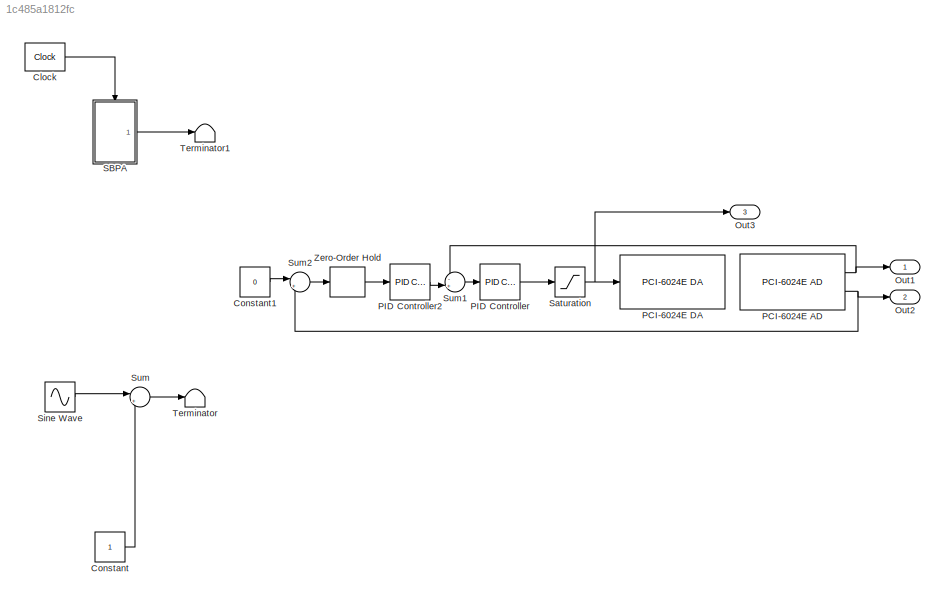
MODEL slx_1c485a1812fc
KIND model
CONFIG AbsTol = auto
CONFIG EnableMultiTasking = off
CONFIG FixedStep = Te
CONFIG MaxStep = auto
CONFIG MinStep = auto
CONFIG RelTol = 1e-3
CONFIG SampleTimeConstraint = Unconstrained
CONFIG Solver = ode3
CONFIG SolverName = ode3
CONFIG StartTime = 0.0
CONFIG StopTime = inf
BLOCK [Reference] Clock  REF=simulink_extras/Flip Flops/Clock
  Ports = [0, 1]
  SourceBlock = simulink_extras/Flip Flops/Clock
  SourceType = Digital clock
BLOCK [Constant] Constant
BLOCK [Constant] Constant1
  Value = 0
BLOCK [Outport] Out1
  IconDisplay = Port number
BLOCK [Outport] Out2
  IconDisplay = Port number
  Port = 2
BLOCK [Outport] Out3
  IconDisplay = Port number
  Port = 3
BLOCK [Reference] PCI-6024E AD  REF=xpcnilib/A//D/E Series/PCI-6024E AD
  Ports = [0, 2]
  SourceBlock = xpcnilib/A//D/E Series/PCI-6024E AD
  SourceType = adnipci6024e
BLOCK [Reference] PCI-6024E DA  REF=xpcnilib/D//A/E Series/PCI-6024E DA
  Ports = [1]
  SourceBlock = xpcnilib/D//A/E Series/PCI-6024E DA
  SourceType = danipci6024e
BLOCK [Reference] PID Controller  REF=simulink/Continuous/PID Controller
  Ports = [1, 1]
  SourceBlock = simulink/Continuous/PID Controller
  SourceType = PID 1dof
BLOCK [Reference] PID Controller2  REF=simulink/Continuous/PID Controller
  Ports = [1, 1]
  SourceBlock = simulink/Continuous/PID Controller
  SourceType = PID 1dof
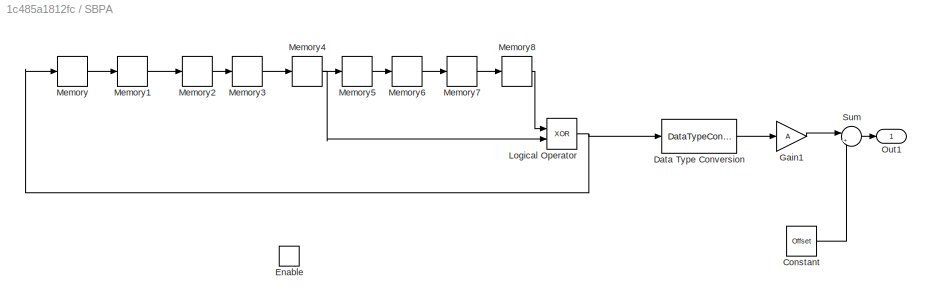
BLOCK [SubSystem] SBPA
  Ports = [0, 1, 1]
  RequestExecContextInheritance = off
  Variant = off
BLOCK [Constant] SBPA/Constant
  Value = Offset
BLOCK [DataTypeConversion] SBPA/Data Type Conversion
  OutDataTypeStr = double
  OutMax = [5]
  OutMin = [0]
  RndMeth = Floor
  SaturateOnIntegerOverflow = off
BLOCK [EnablePort] SBPA/Enable
  Ports = []
BLOCK [Gain] SBPA/Gain1
  Gain = A
  OutDataTypeStr = Inherit: Inherit via internal rule
  ParamDataTypeStr = Inherit: Inherit via internal rule
  SaturateOnIntegerOverflow = off
BLOCK [Logic] SBPA/Logical Operator
  AllPortsSameDT = off
  Operator = XOR
  OutDataTypeStr = boolean
  Ports = [2, 1]
BLOCK [Memory] SBPA/Memory
  InheritSampleTime = on
  X0 = 1
BLOCK [Memory] SBPA/Memory1
  InheritSampleTime = on
BLOCK [Memory] SBPA/Memory2
  InheritSampleTime = on
BLOCK [Memory] SBPA/Memory3
  InheritSampleTime = on
BLOCK [Memory] SBPA/Memory4
  InheritSampleTime = on
BLOCK [Memory] SBPA/Memory5
  InheritSampleTime = on
BLOCK [Memory] SBPA/Memory6
  InheritSampleTime = on
BLOCK [Memory] SBPA/Memory7
  InheritSampleTime = on
BLOCK [Memory] SBPA/Memory8
  InheritSampleTime = on
BLOCK [Outport] SBPA/Out1
  IconDisplay = Port number
BLOCK [Sum] SBPA/Sum
  IconShape = round
  InputSameDT = off
  Inputs = |++
  OutDataTypeStr = Inherit: Inherit via internal rule
  Ports = [2, 1]
  SaturateOnIntegerOverflow = off
BLOCK [Saturate] Saturation
  InputPortMap = u0
  LowerLimit = -10
  Ports = [1, 1]
  UpperLimit = 10
BLOCK [Sin] Sine Wave
  Amplitude = 9
  Frequency = 6*pi
  Ports = [0, 1]
  SampleTime = Te
BLOCK [Sum] Sum
  IconShape = round
  InputSameDT = off
  Inputs = |++
  OutDataTypeStr = Inherit: Inherit via internal rule
  Ports = [2, 1]
  SaturateOnIntegerOverflow = off
BLOCK [Sum] Sum1
  IconShape = round
  InputSameDT = off
  Inputs = -+|
  OutDataTypeStr = Inherit: Inherit via internal rule
  Ports = [2, 1]
  SaturateOnIntegerOverflow = off
BLOCK [Sum] Sum2
  IconShape = round
  InputSameDT = off
  Inputs = |+-
  OutDataTypeStr = Inherit: Inherit via internal rule
  Ports = [2, 1]
  SaturateOnIntegerOverflow = off
BLOCK [Terminator] Terminator
BLOCK [Terminator] Terminator1
BLOCK [ZeroOrderHold] Zero-Order Hold
  SampleTime = Te
LINE Clock:1 -> SBPA:enable
LINE Constant1:1 -> Sum2:1
LINE Constant:1 -> Sum:2
NET PCI-6024E AD:1 -> Out1:1, Sum1:1
NET PCI-6024E AD:2 -> Out2:1, Sum2:2
LINE PID Controller2:1 -> Sum1:2
LINE PID Controller:1 -> Saturation:1
LINE SBPA/Constant:1 -> SBPA/Sum:2
LINE SBPA/Data Type Conversion:1 -> SBPA/Gain1:1
LINE SBPA/Gain1:1 -> SBPA/Sum:1
NET SBPA/Logical Operator:1 -> SBPA/Data Type Conversion:1, SBPA/Memory:1
LINE SBPA/Memory1:1 -> SBPA/Memory2:1
LINE SBPA/Memory2:1 -> SBPA/Memory3:1
LINE SBPA/Memory3:1 -> SBPA/Memory4:1
NET SBPA/Memory4:1 -> SBPA/Logical Operator:2, SBPA/Memory5:1
LINE SBPA/Memory5:1 -> SBPA/Memory6:1
LINE SBPA/Memory6:1 -> SBPA/Memory7:1
LINE SBPA/Memory7:1 -> SBPA/Memory8:1
LINE SBPA/Memory8:1 -> SBPA/Logical Operator:1
LINE SBPA/Memory:1 -> SBPA/Memory1:1
LINE SBPA/Sum:1 -> SBPA/Out1:1
LINE SBPA:1 -> Terminator1:1
NET Saturation:1 -> Out3:1, PCI-6024E DA:1
LINE Sine Wave:1 -> Sum:1
LINE Sum1:1 -> PID Controller:1
LINE Sum2:1 -> Zero-Order Hold:1
LINE Sum:1 -> Terminator:1
LINE Zero-Order Hold:1 -> PID Controller2:1
note: NET lines group one-source signal fan-out (src -> all destinations, sorted); 1:1 wires keep LINE
